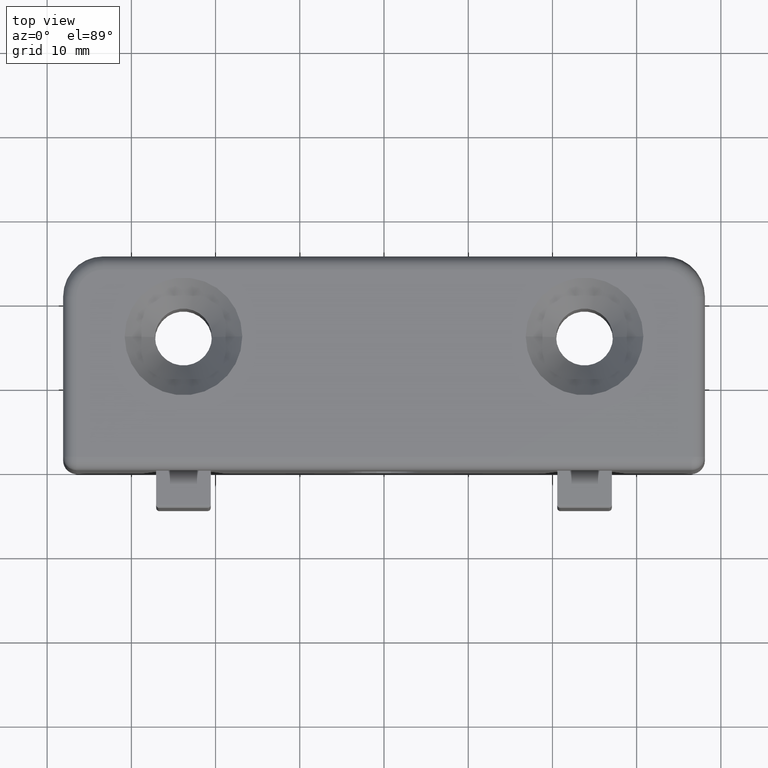
[diagram: clean part render]
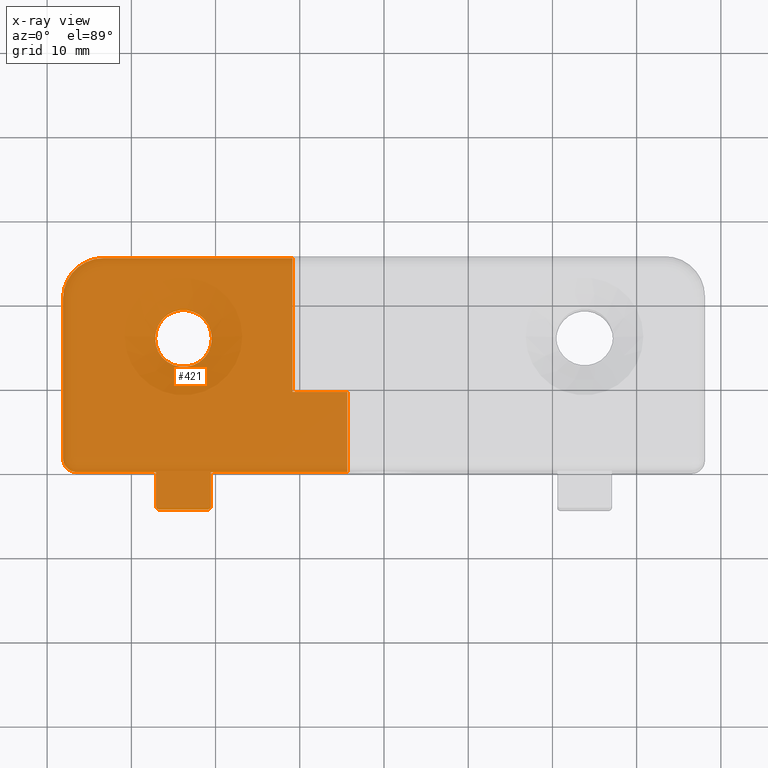
[diagram: x-ray — body ghosted, one internal face saturated and labeled with its STEP entity id]
A machine part, top view, then the same camera in x-ray: the body is ghosted and one INTERNAL B-rep face — a face not visible from any outside direction — is saturated and labeled: STEP entity #421.
In plain terms, the highlighted planar face has unit normal (0, 0, 1).
Its self-contained STEP definition (entity closure, byte-faithful):
#34 = CIRCLE ( 'NONE', #250, 0.1329999999999999200 ) ;
#250 = AXIS2_PLACEMENT_3D ( 'NONE', #9872, #10096, #9878 ) ;
#292 = AXIS2_PLACEMENT_3D ( 'NONE', #1146, #1114, #1113 ) ;
#295 = AXIS2_PLACEMENT_3D ( 'NONE', #1127, #1123, #1122 ) ;
#421 = ADVANCED_FACE ( 'NONE', ( #970, #976 ), #2457, .T. ) ;
#509 = EDGE_CURVE ( 'NONE', #5069, #5203, #1933, .T. ) ;
#512 = EDGE_CURVE ( 'NONE', #5069, #5116, #1942, .T. ) ;
#514 = EDGE_CURVE ( 'NONE', #5054, #5043, #1945, .T. ) ;
#516 = EDGE_CURVE ( 'NONE', #5044, #4992, #1943, .T. ) ;
#517 = EDGE_CURVE ( 'NONE', #5078, #5017, #1948, .T. ) ;
#519 = EDGE_CURVE ( 'NONE', #5017, #5044, #1955, .T. ) ;
#640 = DIRECTION ( 'NONE',  ( 0.0000000000000000000, -1.000000000000000000, 0.0000000000000000000 ) ) ;
#645 = CARTESIAN_POINT ( 'NONE',  ( -1.064999999999999900, 5.327213576290987600E-017, 0.0000000000000000000 ) ) ;
#652 = DIRECTION ( 'NONE',  ( -0.0000000000000000000, 1.000000000000000000, -0.0000000000000000000 ) ) ;
#655 = CARTESIAN_POINT ( 'NONE',  ( -0.4269999999999999900, 0.3749999999999999400, 0.0000000000000000000 ) ) ;
#861 = ORIENTED_EDGE ( 'NONE', *, *, #509, .T. ) ;
#970 = FACE_OUTER_BOUND ( 'NONE', #5473, .T. ) ;
#976 = FACE_BOUND ( 'NONE', #10272, .T. ) ;
#1111 = DIRECTION ( 'NONE',  ( 1.000000000000000000, 0.0000000000000000000, 0.0000000000000000000 ) ) ;
#1112 = CARTESIAN_POINT ( 'NONE',  ( 0.0000000000000000000, 0.3749999999999999400, 0.0000000000000000000 ) ) ;
#1113 = DIRECTION ( 'NONE',  ( 1.000000000000000000, 0.0000000000000000000, 0.0000000000000000000 ) ) ;
#1114 = DIRECTION ( 'NONE',  ( -0.0000000000000000000, -0.0000000000000000000, -1.000000000000000000 ) ) ;
#1116 = DIRECTION ( 'NONE',  ( -1.000000000000000000, 0.0000000000000000000, 0.0000000000000000000 ) ) ;
#1117 = CARTESIAN_POINT ( 'NONE',  ( -1.312499999999998900, 1.000000000000000000, 0.0000000000000000000 ) ) ;
#1118 = DIRECTION ( 'NONE',  ( -0.0000000000000000000, 1.000000000000000000, -0.0000000000000000000 ) ) ;
#1119 = CARTESIAN_POINT ( 'NONE',  ( -0.1714999999999999600, -0.1749999999999999900, 0.0000000000000000000 ) ) ;
#1120 = DIRECTION ( 'NONE',  ( 0.0000000000000000000, 1.000000000000000000, 0.0000000000000000000 ) ) ;
#1121 = CARTESIAN_POINT ( 'NONE',  ( -0.8100000000000000500, 2.204364238465238300E-017, 0.0000000000000000000 ) ) ;
#1122 = DIRECTION ( 'NONE',  ( 1.000000000000000000, 0.0000000000000000000, 0.0000000000000000000 ) ) ;
#1123 = DIRECTION ( 'NONE',  ( 0.0000000000000000000, 0.0000000000000000000, 1.000000000000000000 ) ) ;
#1125 = DIRECTION ( 'NONE',  ( 1.000000000000000000, 1.224646799147352500E-016, 0.0000000000000000000 ) ) ;
#1126 = CARTESIAN_POINT ( 'NONE',  ( -1.437500000000000000, 7.654042494671008400E-018, 0.0000000000000000000 ) ) ;
#1127 = CARTESIAN_POINT ( 'NONE',  ( -1.312500000000000200, 0.8125000000000000000, 0.0000000000000000000 ) ) ;
#1146 = CARTESIAN_POINT ( 'NONE',  ( -0.8256250000000001600, -0.1593749999999996800, 0.0000000000000000000 ) ) ;
#1250 = EDGE_CURVE ( 'NONE', #5043, #5054, #34, .T. ) ;
#1933 = LINE ( 'NONE', #3854, #1936 ) ;
#1936 = VECTOR ( 'NONE', #3842, 39.37007874015748100 ) ;
#1942 = CIRCLE ( 'NONE', #3788, 0.01562500000000005600 ) ;
#1943 = LINE ( 'NONE', #3893, #1946 ) ;
#1945 = CIRCLE ( 'NONE', #3801, 0.1329999999999999200 ) ;
#1946 = VECTOR ( 'NONE', #3894, 39.37007874015748100 ) ;
#1948 = LINE ( 'NONE', #3886, #1949 ) ;
#1949 = VECTOR ( 'NONE', #3889, 39.37007874015748100 ) ;
#1955 = CIRCLE ( 'NONE', #3803, 0.06249999999999995100 ) ;
#2081 = CARTESIAN_POINT ( 'NONE',  ( -1.064999999999999900, 5.327213576290987600E-017, 0.0000000000000000000 ) ) ;
#2109 = CARTESIAN_POINT ( 'NONE',  ( -0.8256250000000001600, -0.1749999999999996800, 0.0000000000000000000 ) ) ;
#2121 = CARTESIAN_POINT ( 'NONE',  ( -0.1715000000000000100, 0.3749999999999999400, 0.0000000000000000000 ) ) ;
#2123 = CARTESIAN_POINT ( 'NONE',  ( -0.1715000000000000100, 1.497378069986393500E-016, 0.0000000000000000000 ) ) ;
#2185 = CARTESIAN_POINT ( 'NONE',  ( -0.8100000000000000500, 2.204364238465238300E-017, 0.0000000000000000000 ) ) ;
#2213 = CARTESIAN_POINT ( 'NONE',  ( -0.8045000000000001000, 0.6250000000000000000, 0.0000000000000000000 ) ) ;
#2257 = CARTESIAN_POINT ( 'NONE',  ( -0.4269999999999999900, 1.000000000000000000, 0.0000000000000000000 ) ) ;
#2258 = CARTESIAN_POINT ( 'NONE',  ( -1.500000000000000400, 0.06250000000000044400, 0.0000000000000000000 ) ) ;
#2273 = CARTESIAN_POINT ( 'NONE',  ( -1.064999999999999900, -0.1593749999999999600, 0.0000000000000000000 ) ) ;
#2306 = CARTESIAN_POINT ( 'NONE',  ( -1.070500000000000000, 0.6250000000000000000, 0.0000000000000000000 ) ) ;
#2316 = CARTESIAN_POINT ( 'NONE',  ( -1.437500000000000000, 7.654042494671008400E-018, 0.0000000000000000000 ) ) ;
#2327 = CARTESIAN_POINT ( 'NONE',  ( -1.500000000000000200, 0.8124999999999987800, 0.0000000000000000000 ) ) ;
#2417 = CARTESIAN_POINT ( 'NONE',  ( -0.4269999999999999900, 0.3749999999999999400, 0.0000000000000000000 ) ) ;
#2420 = CARTESIAN_POINT ( 'NONE',  ( -0.8100000000000000500, -0.1593749999999996800, 0.0000000000000000000 ) ) ;
#2450 = DIRECTION ( 'NONE',  ( 1.000000000000000000, 0.0000000000000000000, -0.0000000000000000000 ) ) ;
#2452 = DIRECTION ( 'NONE',  ( 0.0000000000000000000, 0.0000000000000000000, 1.000000000000000000 ) ) ;
#2457 = PLANE ( 'NONE',  #3725 ) ;
#2459 = CARTESIAN_POINT ( 'NONE',  ( 0.0000000000000000000, 0.0000000000000000000, 0.0000000000000000000 ) ) ;
#2507 = CARTESIAN_POINT ( 'NONE',  ( -1.312499999999998900, 1.000000000000000000, 0.0000000000000000000 ) ) ;
#2583 = CARTESIAN_POINT ( 'NONE',  ( -1.049374999999999900, -0.1749999999999999300, 0.0000000000000000000 ) ) ;
#3725 = AXIS2_PLACEMENT_3D ( 'NONE', #2459, #2452, #2450 ) ;
#3788 = AXIS2_PLACEMENT_3D ( 'NONE', #3834, #3832, #3831 ) ;
#3801 = AXIS2_PLACEMENT_3D ( 'NONE', #3824, #3823, #3892 ) ;
#3803 = AXIS2_PLACEMENT_3D ( 'NONE', #3877, #3879, #3882 ) ;
#3823 = DIRECTION ( 'NONE',  ( -0.0000000000000000000, -0.0000000000000000000, -1.000000000000000000 ) ) ;
#3824 = CARTESIAN_POINT ( 'NONE',  ( -0.9375000000000000000, 0.6250000000000000000, 0.0000000000000000000 ) ) ;
#3831 = DIRECTION ( 'NONE',  ( 1.000000000000000000, 0.0000000000000000000, 0.0000000000000000000 ) ) ;
#3832 = DIRECTION ( 'NONE',  ( -0.0000000000000000000, -0.0000000000000000000, -1.000000000000000000 ) ) ;
#3834 = CARTESIAN_POINT ( 'NONE',  ( -1.049374999999999900, -0.1593749999999999600, 0.0000000000000000000 ) ) ;
#3842 = DIRECTION ( 'NONE',  ( 1.000000000000000000, 1.071312938691868600E-015, 0.0000000000000000000 ) ) ;
#3854 = CARTESIAN_POINT ( 'NONE',  ( -1.064999999999999900, -0.1749999999999999300, 0.0000000000000000000 ) ) ;
#3877 = CARTESIAN_POINT ( 'NONE',  ( -1.437500000000000400, 0.06250000000000000000, 0.0000000000000000000 ) ) ;
#3879 = DIRECTION ( 'NONE',  ( 0.0000000000000000000, 0.0000000000000000000, 1.000000000000000000 ) ) ;
#3882 = DIRECTION ( 'NONE',  ( 1.000000000000000000, 0.0000000000000000000, 0.0000000000000000000 ) ) ;
#3886 = CARTESIAN_POINT ( 'NONE',  ( -1.500000000000000400, 0.06250000000000045800, 0.0000000000000000000 ) ) ;
#3889 = DIRECTION ( 'NONE',  ( -3.642463991552359800E-016, -1.000000000000000000, 0.0000000000000000000 ) ) ;
#3892 = DIRECTION ( 'NONE',  ( 1.000000000000000000, 0.0000000000000000000, 0.0000000000000000000 ) ) ;
#3893 = CARTESIAN_POINT ( 'NONE',  ( -1.437500000000000000, 7.654042494671008400E-018, 0.0000000000000000000 ) ) ;
#3894 = DIRECTION ( 'NONE',  ( 1.000000000000000000, 1.224646799147352500E-016, 0.0000000000000000000 ) ) ;
#4983 = VERTEX_POINT ( 'NONE', #2257 ) ;
#4988 = VERTEX_POINT ( 'NONE', #2123 ) ;
#4992 = VERTEX_POINT ( 'NONE', #2081 ) ;
#5017 = VERTEX_POINT ( 'NONE', #2258 ) ;
#5043 = VERTEX_POINT ( 'NONE', #2306 ) ;
#5044 = VERTEX_POINT ( 'NONE', #2316 ) ;
#5054 = VERTEX_POINT ( 'NONE', #2213 ) ;
#5069 = VERTEX_POINT ( 'NONE', #2583 ) ;
#5074 = VERTEX_POINT ( 'NONE', #2417 ) ;
#5078 = VERTEX_POINT ( 'NONE', #2327 ) ;
#5097 = VERTEX_POINT ( 'NONE', #2121 ) ;
#5103 = VERTEX_POINT ( 'NONE', #2185 ) ;
#5116 = VERTEX_POINT ( 'NONE', #2273 ) ;
#5139 = VERTEX_POINT ( 'NONE', #2420 ) ;
#5145 = VERTEX_POINT ( 'NONE', #2507 ) ;
#5203 = VERTEX_POINT ( 'NONE', #2109 ) ;
#5473 = EDGE_LOOP ( 'NONE', ( #7426, #5981, #7463, #7422, #7421, #861, #7418, #6005, #7423, #7412, #7452, #7419, #7441, #6003 ) ) ;
#5853 = EDGE_CURVE ( 'NONE', #5103, #4988, #8214, .T. ) ;
#5854 = EDGE_CURVE ( 'NONE', #5145, #5078, #8222, .T. ) ;
#5855 = EDGE_CURVE ( 'NONE', #5139, #5103, #8150, .T. ) ;
#5856 = EDGE_CURVE ( 'NONE', #4988, #5097, #8224, .T. ) ;
#5857 = EDGE_CURVE ( 'NONE', #4983, #5145, #8229, .T. ) ;
#5858 = EDGE_CURVE ( 'NONE', #5139, #5203, #8238, .T. ) ;
#5859 = EDGE_CURVE ( 'NONE', #5074, #5097, #8172, .T. ) ;
#5860 = EDGE_CURVE ( 'NONE', #5074, #4983, #8239, .T. ) ;
#5861 = EDGE_CURVE ( 'NONE', #4992, #5116, #8242, .T. ) ;
#5981 = ORIENTED_EDGE ( 'NONE', *, *, #519, .T. ) ;
#6003 = ORIENTED_EDGE ( 'NONE', *, *, #5854, .T. ) ;
#6005 = ORIENTED_EDGE ( 'NONE', *, *, #5855, .T. ) ;
#6008 = ORIENTED_EDGE ( 'NONE', *, *, #1250, .T. ) ;
#6011 = ORIENTED_EDGE ( 'NONE', *, *, #514, .T. ) ;
#7412 = ORIENTED_EDGE ( 'NONE', *, *, #5856, .T. ) ;
#7418 = ORIENTED_EDGE ( 'NONE', *, *, #5858, .F. ) ;
#7419 = ORIENTED_EDGE ( 'NONE', *, *, #5860, .T. ) ;
#7421 = ORIENTED_EDGE ( 'NONE', *, *, #512, .F. ) ;
#7422 = ORIENTED_EDGE ( 'NONE', *, *, #5861, .T. ) ;
#7423 = ORIENTED_EDGE ( 'NONE', *, *, #5853, .T. ) ;
#7426 = ORIENTED_EDGE ( 'NONE', *, *, #517, .T. ) ;
#7441 = ORIENTED_EDGE ( 'NONE', *, *, #5857, .T. ) ;
#7452 = ORIENTED_EDGE ( 'NONE', *, *, #5859, .F. ) ;
#7463 = ORIENTED_EDGE ( 'NONE', *, *, #516, .T. ) ;
#8150 = LINE ( 'NONE', #1121, #8212 ) ;
#8172 = LINE ( 'NONE', #1112, #8220 ) ;
#8210 = VECTOR ( 'NONE', #1125, 39.37007874015748100 ) ;
#8212 = VECTOR ( 'NONE', #1120, 39.37007874015748100 ) ;
#8214 = LINE ( 'NONE', #1126, #8210 ) ;
#8220 = VECTOR ( 'NONE', #1111, 39.37007874015748100 ) ;
#8222 = CIRCLE ( 'NONE', #295, 0.1874999999999998300 ) ;
#8224 = LINE ( 'NONE', #1119, #8227 ) ;
#8227 = VECTOR ( 'NONE', #1118, 39.37007874015748100 ) ;
#8229 = LINE ( 'NONE', #1117, #8231 ) ;
#8231 = VECTOR ( 'NONE', #1116, 39.37007874015748100 ) ;
#8238 = CIRCLE ( 'NONE', #292, 0.01562500000000005600 ) ;
#8239 = LINE ( 'NONE', #655, #8241 ) ;
#8241 = VECTOR ( 'NONE', #652, 39.37007874015748100 ) ;
#8242 = LINE ( 'NONE', #645, #8245 ) ;
#8245 = VECTOR ( 'NONE', #640, 39.37007874015748100 ) ;
#9872 = CARTESIAN_POINT ( 'NONE',  ( -0.9375000000000000000, 0.6250000000000000000, 0.0000000000000000000 ) ) ;
#9878 = DIRECTION ( 'NONE',  ( 1.000000000000000000, 0.0000000000000000000, 0.0000000000000000000 ) ) ;
#10096 = DIRECTION ( 'NONE',  ( -0.0000000000000000000, -0.0000000000000000000, -1.000000000000000000 ) ) ;
#10272 = EDGE_LOOP ( 'NONE', ( #6008, #6011 ) ) ;